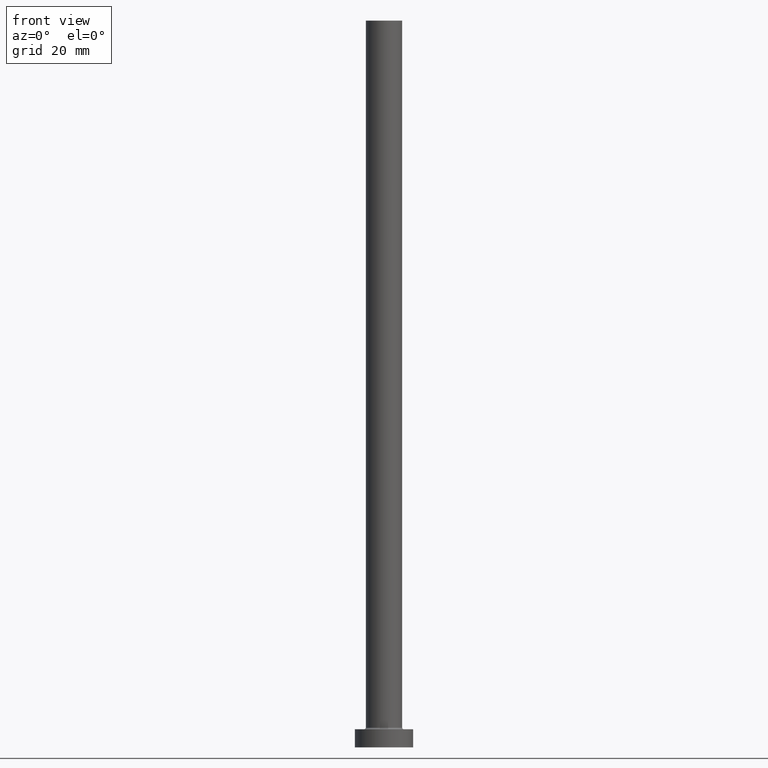
[diagram: clean part render]
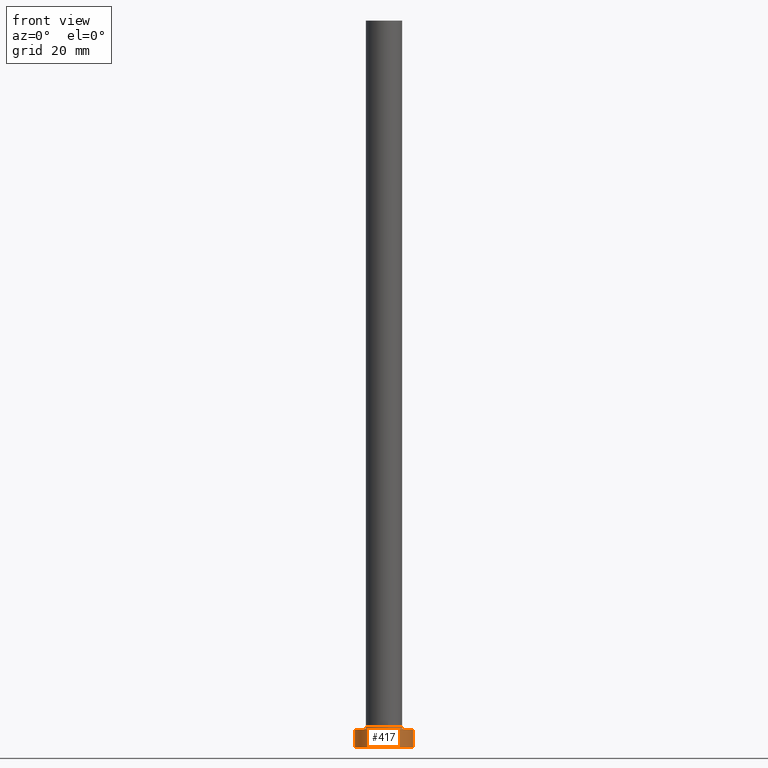
[diagram: same view with one face highlighted and labeled with its STEP entity id]
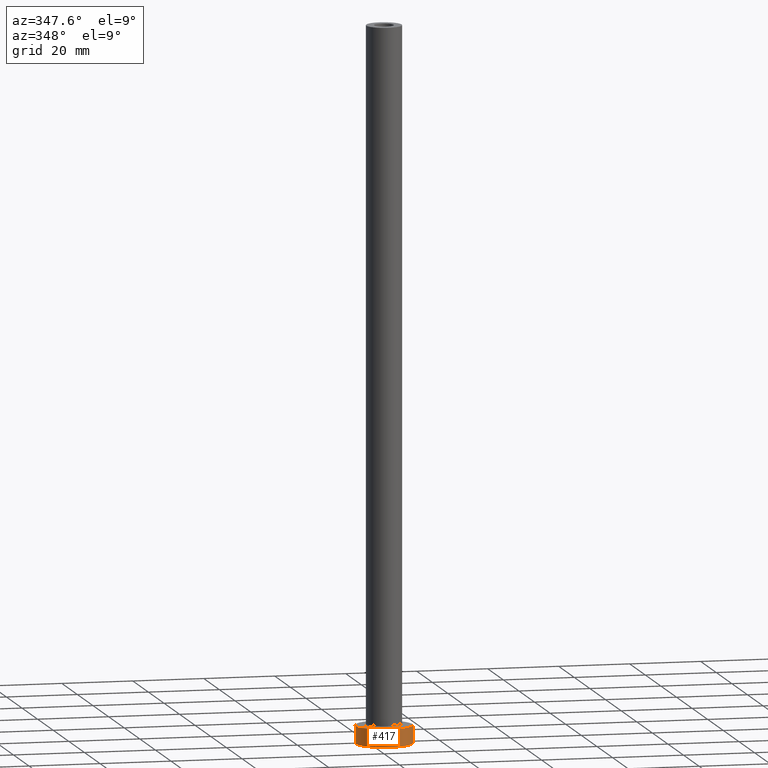
[diagram: same view with one face highlighted and labeled with its STEP entity id]
A machine part, front view. The second image highlights one B-rep face of the part: STEP entity #417.
A second angle (auxiliary view) of the same face is appended — the face is thin or edge-on in the first view.
In plain terms, the highlighted cylindrical surface (edge-blend (fillet) strip) has radius 8 mm, axis along (-0, -0, -1).
Its self-contained STEP definition (entity closure, byte-faithful):
#4 = CARTESIAN_POINT ( 'NONE',  ( 8.000000000000000000, 9.797174393178825657E-16, 5.000000000000000000 ) ) ;
#9 = EDGE_LOOP ( 'NONE', ( #254, #267, #292, #352 ) ) ;
#13 = EDGE_CURVE ( 'NONE', #433, #295, #139, .T. ) ;
#15 = DIRECTION ( 'NONE',  ( 1.000000000000000000, 0.000000000000000000, 0.000000000000000000 ) ) ;
#23 = CARTESIAN_POINT ( 'NONE',  ( 0.000000000000000000, 0.000000000000000000, 5.000000000000000000 ) ) ;
#27 = CYLINDRICAL_SURFACE ( 'NONE', #217, 8.000000000000000000 ) ;
#53 = DIRECTION ( 'NONE',  ( 0.000000000000000000, 0.000000000000000000, 1.000000000000000000 ) ) ;
#65 = DIRECTION ( 'NONE',  ( -0.000000000000000000, -0.000000000000000000, -1.000000000000000000 ) ) ;
#72 = EDGE_CURVE ( 'NONE', #88, #330, #194, .T. ) ;
#79 = EDGE_CURVE ( 'NONE', #295, #330, #445, .T. ) ;
#88 = VERTEX_POINT ( 'NONE', #384 ) ;
#107 = LINE ( 'NONE', #458, #343 ) ;
#138 = EDGE_CURVE ( 'NONE', #433, #88, #107, .T. ) ;
#139 = CIRCLE ( 'NONE', #356, 8.000000000000000000 ) ;
#194 = CIRCLE ( 'NONE', #420, 8.000000000000000000 ) ;
#196 = DIRECTION ( 'NONE',  ( 1.000000000000000000, 0.000000000000000000, 0.000000000000000000 ) ) ;
#198 = CARTESIAN_POINT ( 'NONE',  ( 0.000000000000000000, 0.000000000000000000, 0.000000000000000000 ) ) ;
#203 = DIRECTION ( 'NONE',  ( -1.000000000000000000, 0.000000000000000000, 0.000000000000000000 ) ) ;
#211 = DIRECTION ( 'NONE',  ( -0.000000000000000000, -0.000000000000000000, -1.000000000000000000 ) ) ;
#217 = AXIS2_PLACEMENT_3D ( 'NONE', #311, #65, #203 ) ;
#254 = ORIENTED_EDGE ( 'NONE', *, *, #79, .F. ) ;
#267 = ORIENTED_EDGE ( 'NONE', *, *, #13, .F. ) ;
#292 = ORIENTED_EDGE ( 'NONE', *, *, #138, .T. ) ;
#295 = VERTEX_POINT ( 'NONE', #4 ) ;
#311 = CARTESIAN_POINT ( 'NONE',  ( 0.000000000000000000, 0.000000000000000000, 5.000000000000000000 ) ) ;
#330 = VERTEX_POINT ( 'NONE', #412 ) ;
#339 = DIRECTION ( 'NONE',  ( 0.000000000000000000, 0.000000000000000000, 1.000000000000000000 ) ) ;
#343 = VECTOR ( 'NONE', #211, 1000.000000000000000 ) ;
#352 = ORIENTED_EDGE ( 'NONE', *, *, #72, .T. ) ;
#356 = AXIS2_PLACEMENT_3D ( 'NONE', #23, #53, #196 ) ;
#384 = CARTESIAN_POINT ( 'NONE',  ( -8.000000000000000000, 0.000000000000000000, 0.000000000000000000 ) ) ;
#385 = FACE_OUTER_BOUND ( 'NONE', #9, .T. ) ;
#412 = CARTESIAN_POINT ( 'NONE',  ( 8.000000000000000000, 9.797174393178825657E-16, 0.000000000000000000 ) ) ;
#413 = CARTESIAN_POINT ( 'NONE',  ( 8.000000000000000000, 9.797174393178825657E-16, 5.000000000000000000 ) ) ;
#417 = ADVANCED_FACE ( 'NONE', ( #385 ), #27, .T. ) ;
#420 = AXIS2_PLACEMENT_3D ( 'NONE', #198, #339, #15 ) ;
#426 = CARTESIAN_POINT ( 'NONE',  ( -8.000000000000000000, 0.000000000000000000, 5.000000000000000000 ) ) ;
#429 = VECTOR ( 'NONE', #452, 1000.000000000000000 ) ;
#433 = VERTEX_POINT ( 'NONE', #426 ) ;
#445 = LINE ( 'NONE', #413, #429 ) ;
#452 = DIRECTION ( 'NONE',  ( -0.000000000000000000, -0.000000000000000000, -1.000000000000000000 ) ) ;
#458 = CARTESIAN_POINT ( 'NONE',  ( -8.000000000000000000, 0.000000000000000000, 5.000000000000000000 ) ) ;